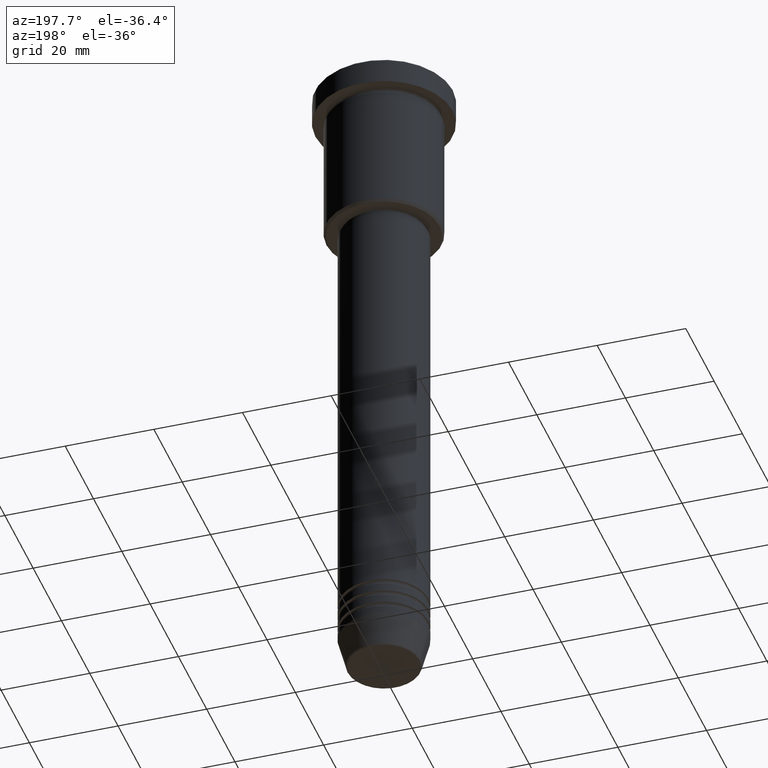
[diagram: clean part render]
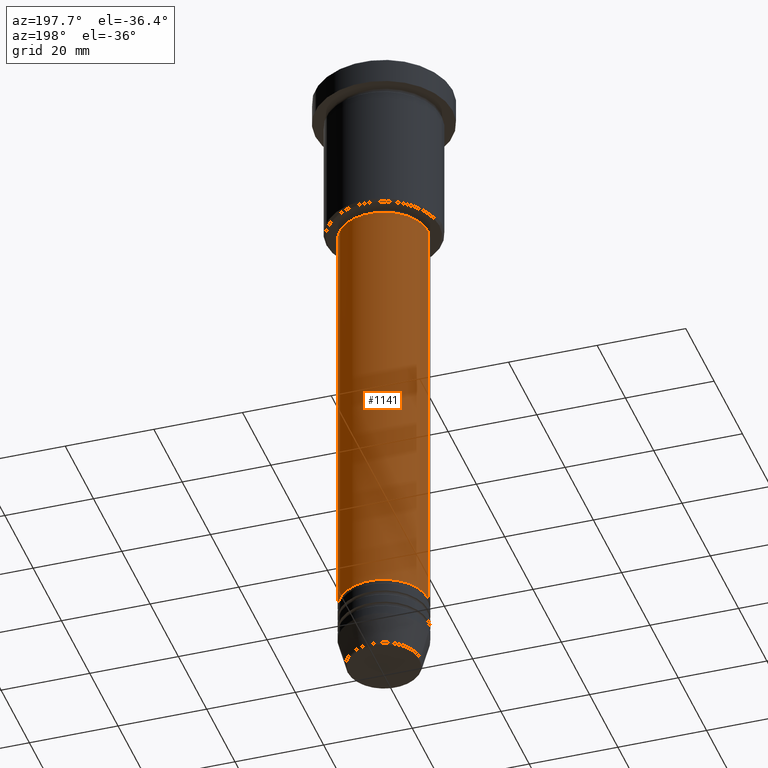
[diagram: same view with one face highlighted and labeled with its STEP entity id]
A machine part, auxiliary view. The second image highlights one B-rep face of the part: STEP entity #1141.
In plain terms, the highlighted cylindrical surface (partial cylindrical patch) has radius 10 mm, axis along (-0, -0, 1).
Its self-contained STEP definition (entity closure, byte-faithful):
#2 = VERTEX_POINT ( 'NONE', #905 ) ;
#7 = CARTESIAN_POINT ( 'NONE',  ( 10.00000000000000000, 0.000000000000000000, -37.00000000000001421 ) ) ;
#46 = DIRECTION ( 'NONE',  ( -0.000000000000000000, -0.000000000000000000, 1.000000000000000000 ) ) ;
#59 = AXIS2_PLACEMENT_3D ( 'NONE', #255, #812, #1155 ) ;
#65 = ORIENTED_EDGE ( 'NONE', *, *, #1129, .F. ) ;
#87 = EDGE_CURVE ( 'NONE', #778, #2, #465, .T. ) ;
#255 = CARTESIAN_POINT ( 'NONE',  ( 0.000000000000000000, 0.000000000000000000, -134.9999999999999716 ) ) ;
#284 = CARTESIAN_POINT ( 'NONE',  ( -10.00000000000000000, 1.224646799147353256E-15, 0.000000000000000000 ) ) ;
#291 = AXIS2_PLACEMENT_3D ( 'NONE', #1082, #983, #898 ) ;
#335 = VERTEX_POINT ( 'NONE', #7 ) ;
#350 = EDGE_CURVE ( 'NONE', #778, #335, #736, .T. ) ;
#353 = CARTESIAN_POINT ( 'NONE',  ( -10.00000000000000000, 1.224646799147353256E-15, -37.00000000000001421 ) ) ;
#422 = DIRECTION ( 'NONE',  ( 1.000000000000000000, 0.000000000000000000, 0.000000000000000000 ) ) ;
#465 = CIRCLE ( 'NONE', #59, 10.00000000000000000 ) ;
#602 = AXIS2_PLACEMENT_3D ( 'NONE', #903, #46, #422 ) ;
#625 = ORIENTED_EDGE ( 'NONE', *, *, #350, .F. ) ;
#630 = FACE_OUTER_BOUND ( 'NONE', #710, .T. ) ;
#651 = VERTEX_POINT ( 'NONE', #353 ) ;
#686 = EDGE_CURVE ( 'NONE', #2, #651, #1095, .T. ) ;
#710 = EDGE_LOOP ( 'NONE', ( #976, #888, #65, #625 ) ) ;
#711 = CYLINDRICAL_SURFACE ( 'NONE', #291, 10.00000000000000000 ) ;
#730 = CARTESIAN_POINT ( 'NONE',  ( 10.00000000000000000, 0.000000000000000000, -134.9999999999999716 ) ) ;
#736 = LINE ( 'NONE', #1034, #894 ) ;
#778 = VERTEX_POINT ( 'NONE', #730 ) ;
#812 = DIRECTION ( 'NONE',  ( -0.000000000000000000, -0.000000000000000000, 1.000000000000000000 ) ) ;
#888 = ORIENTED_EDGE ( 'NONE', *, *, #686, .T. ) ;
#894 = VECTOR ( 'NONE', #1023, 1000.000000000000000 ) ;
#898 = DIRECTION ( 'NONE',  ( 1.000000000000000000, 0.000000000000000000, 0.000000000000000000 ) ) ;
#903 = CARTESIAN_POINT ( 'NONE',  ( 0.000000000000000000, 0.000000000000000000, -37.00000000000001421 ) ) ;
#905 = CARTESIAN_POINT ( 'NONE',  ( -10.00000000000000000, 1.224646799147353256E-15, -134.9999999999999716 ) ) ;
#919 = DIRECTION ( 'NONE',  ( -0.000000000000000000, -0.000000000000000000, 1.000000000000000000 ) ) ;
#976 = ORIENTED_EDGE ( 'NONE', *, *, #87, .T. ) ;
#983 = DIRECTION ( 'NONE',  ( -0.000000000000000000, -0.000000000000000000, 1.000000000000000000 ) ) ;
#1023 = DIRECTION ( 'NONE',  ( -0.000000000000000000, -0.000000000000000000, 1.000000000000000000 ) ) ;
#1034 = CARTESIAN_POINT ( 'NONE',  ( 10.00000000000000000, 0.000000000000000000, 0.000000000000000000 ) ) ;
#1082 = CARTESIAN_POINT ( 'NONE',  ( 0.000000000000000000, 0.000000000000000000, 0.000000000000000000 ) ) ;
#1095 = LINE ( 'NONE', #284, #1103 ) ;
#1103 = VECTOR ( 'NONE', #919, 1000.000000000000000 ) ;
#1129 = EDGE_CURVE ( 'NONE', #335, #651, #1139, .T. ) ;
#1139 = CIRCLE ( 'NONE', #602, 10.00000000000000000 ) ;
#1141 = ADVANCED_FACE ( 'NONE', ( #630 ), #711, .T. ) ;
#1155 = DIRECTION ( 'NONE',  ( 1.000000000000000000, 0.000000000000000000, 0.000000000000000000 ) ) ;